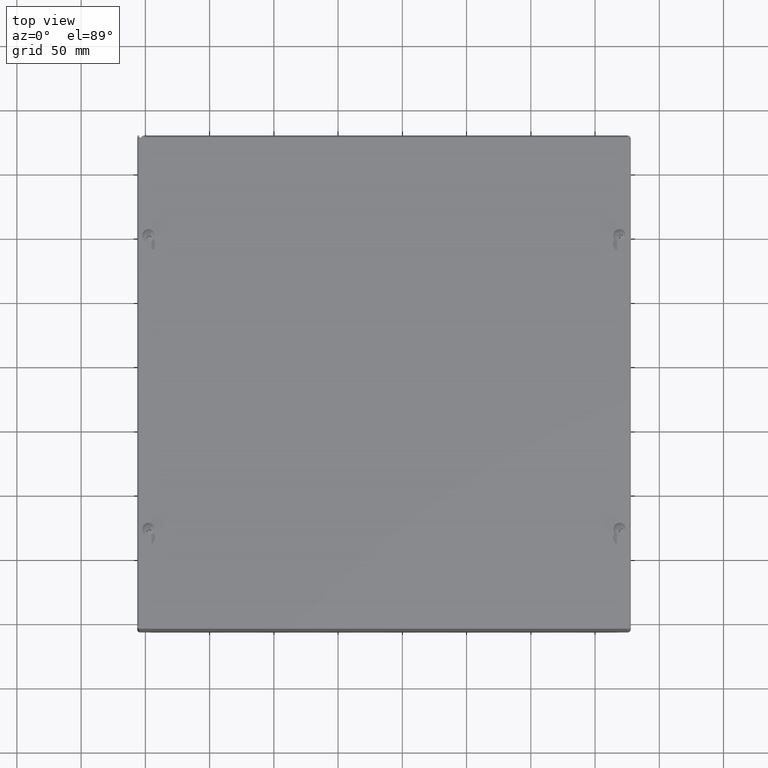
[diagram: clean part render]
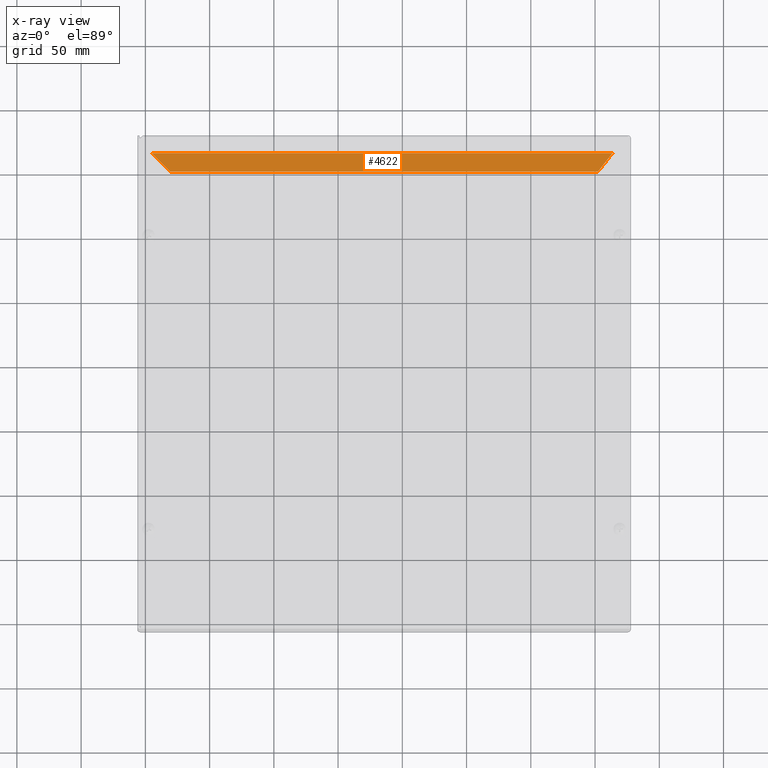
[diagram: x-ray — body ghosted, one internal face saturated and labeled with its STEP entity id]
A machine part, top view, then the same camera in x-ray: the body is ghosted and one INTERNAL B-rep face — a face not visible from any outside direction — is saturated and labeled: STEP entity #4622.
In plain terms, the highlighted planar face has unit normal (-0, 0, 1).
Its self-contained STEP definition (entity closure, byte-faithful):
#344=LINE($,#7760,#695);
#398=LINE($,#7910,#749);
#401=LINE($,#7930,#752);
#402=LINE($,#7931,#753);
#695=VECTOR($,#5630,0.715619378836319);
#749=VECTOR($,#5760,14.1167432680305);
#752=VECTOR($,#5773,13.1118578643765);
#753=VECTOR($,#5774,0.795495128834873);
#951=PLANE($,#4979);
#1347=FACE_OUTER_BOUND($,#1690,.T.);
#1690=EDGE_LOOP($,(#3564,#3565,#3566,#3567));
#2068=VERTEX_POINT($,#6615);
#2207=VERTEX_POINT($,#7758);
#2237=VERTEX_POINT($,#7909);
#2241=VERTEX_POINT($,#7929);
#2648=EDGE_CURVE($,#2068,#2207,#344,.T.);
#2714=EDGE_CURVE($,#2237,#2068,#398,.T.);
#2721=EDGE_CURVE($,#2241,#2207,#401,.T.);
#2722=EDGE_CURVE($,#2237,#2241,#402,.T.);
#3564=ORIENTED_EDGE($,*,*,#2648,.T.);
#3565=ORIENTED_EDGE($,*,*,#2721,.F.);
#3566=ORIENTED_EDGE($,*,*,#2722,.F.);
#3567=ORIENTED_EDGE($,*,*,#2714,.T.);
#4622=ADVANCED_FACE($,(#1347),#951,.F.);
#4979=AXIS2_PLACEMENT_3D($,#7928,#5771,#5772);
#5630=DIRECTION($,(0.786032375080058,-8.19578817355315E-014,-0.618185332506363));
#5760=DIRECTION($,(-6.03083160806297E-014,1.05908305431175E-016,1.));
#5771=DIRECTION('center_axis',(-1.47215573065296E-013,-1.,-5.48777428930544E-014));
#5772=DIRECTION('ref_axis',(5.86553028369961E-014,5.52713430579386E-014,
-1.));
#5773=DIRECTION($,(-5.99096075894803E-014,2.54890787389896E-016,1.));
#5774=DIRECTION($,(0.70710678118648,2.98068488767511E-014,0.707106781186615));
#6615=CARTESIAN_POINT('',(-7.12549999999974,3.18750000000004,-30.461257947502));
#7758=CARTESIAN_POINT('',(-6.56299999999971,3.18750000000007,-30.9036433511559));
#7760=CARTESIAN_POINT($,(-17.1734868292361,3.18750000000116,-22.558888686416));
#7909=CARTESIAN_POINT('',(-7.12549999999889,3.18750000000004,-44.5780012155325));
#7910=CARTESIAN_POINT($,(-7.12549999999932,3.18750000000004,-37.4578786531366));
#7928=CARTESIAN_POINT('Origin',(-10.6478661191729,3.18749999999854,7.57469628610922));
#7929=CARTESIAN_POINT('',(-6.56299999999892,3.18750000000007,-44.0155012155324));
#7930=CARTESIAN_POINT($,(-6.56299999999888,3.18750000000007,-44.7914266190068));
#7931=CARTESIAN_POINT($,(-5.34898567793544,3.18750000000012,-42.8014868934687));